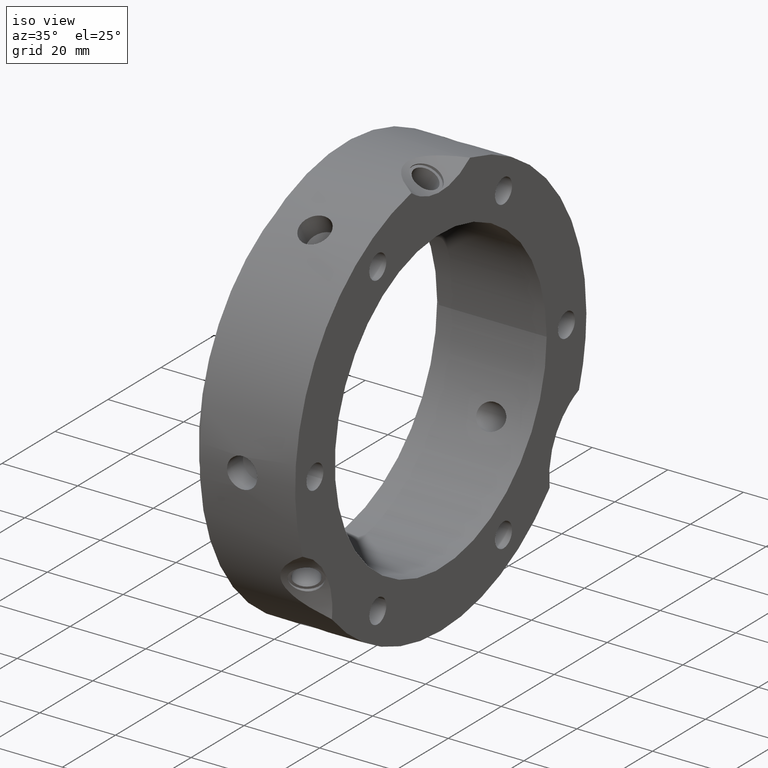
[diagram: clean part render]
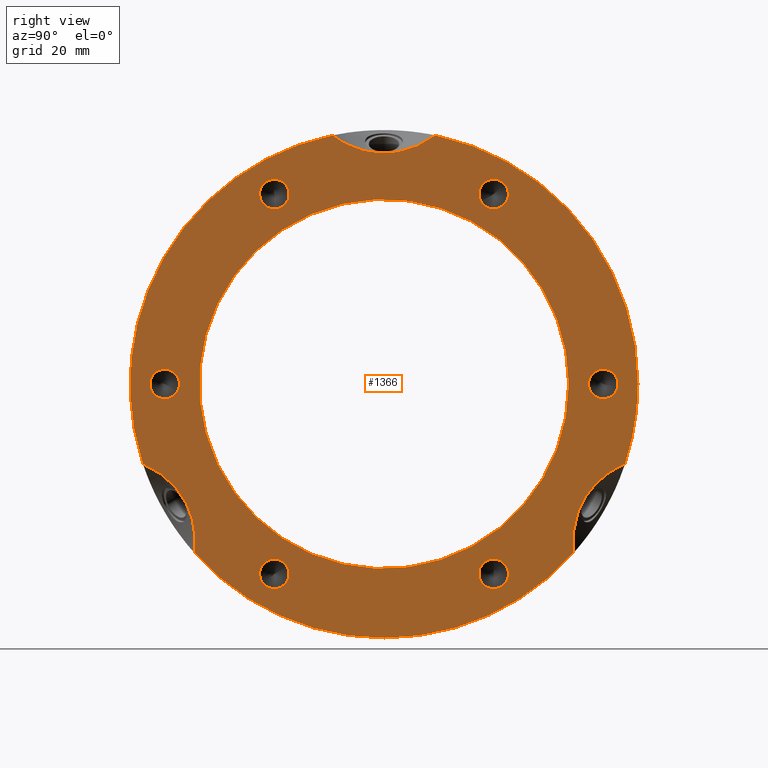
[diagram: tour spotlight — one face highlighted and labeled with its STEP entity id]
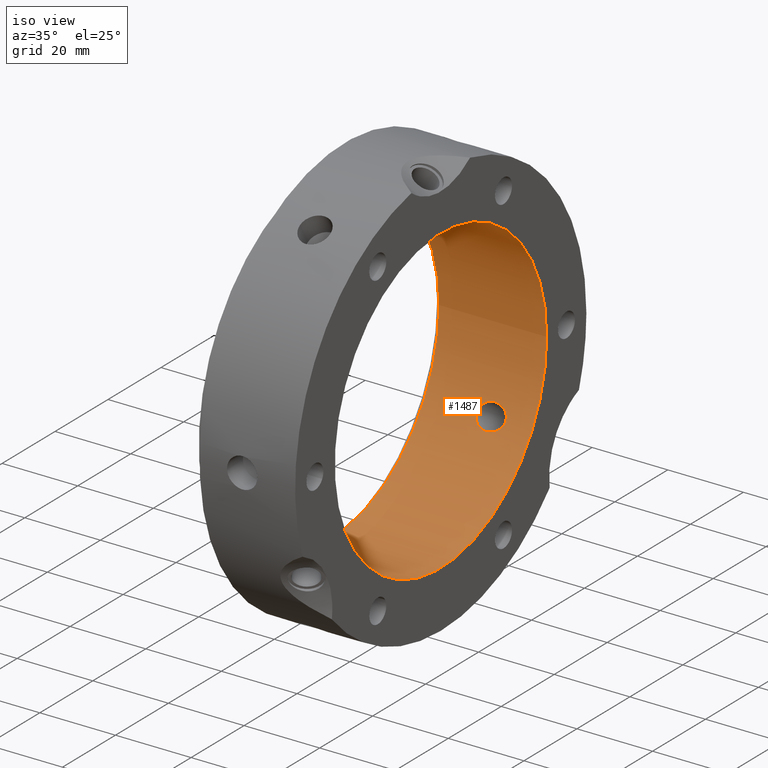
[diagram: tour spotlight — one face highlighted and labeled with its STEP entity id]
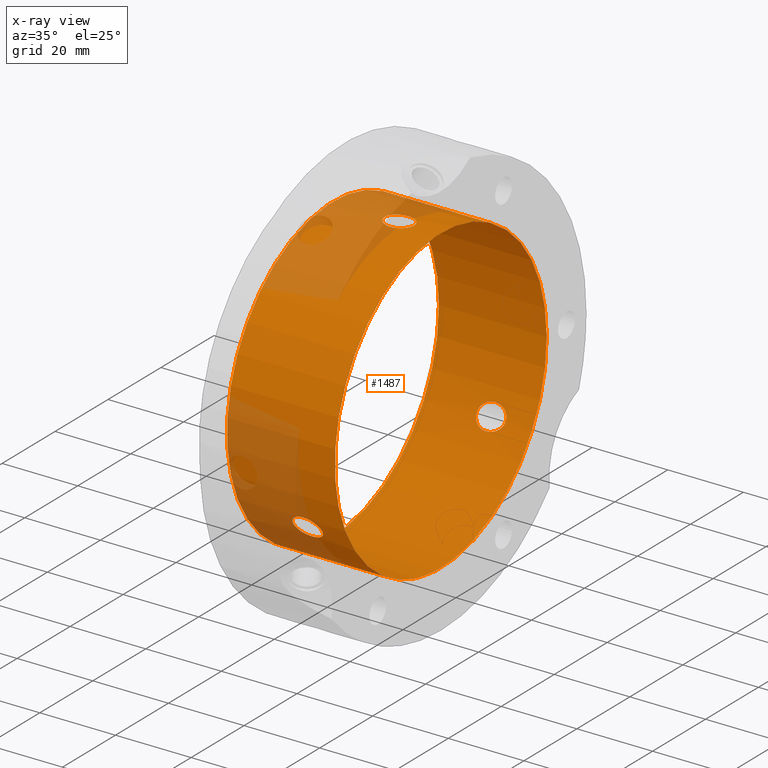
[diagram: x-ray of the same camera — body ghosted, this tour face saturated]
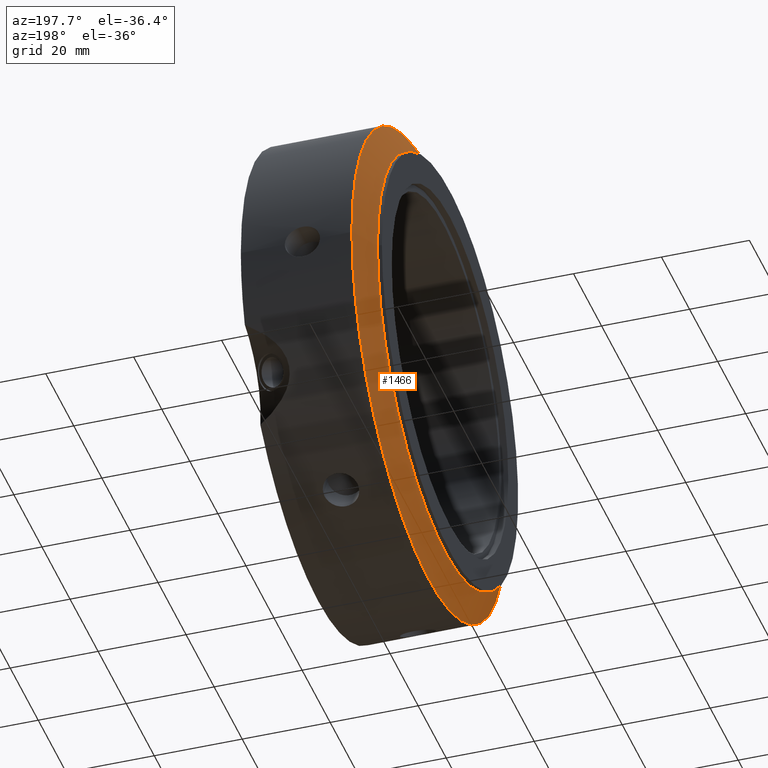
[diagram: tour spotlight — one face highlighted and labeled with its STEP entity id]
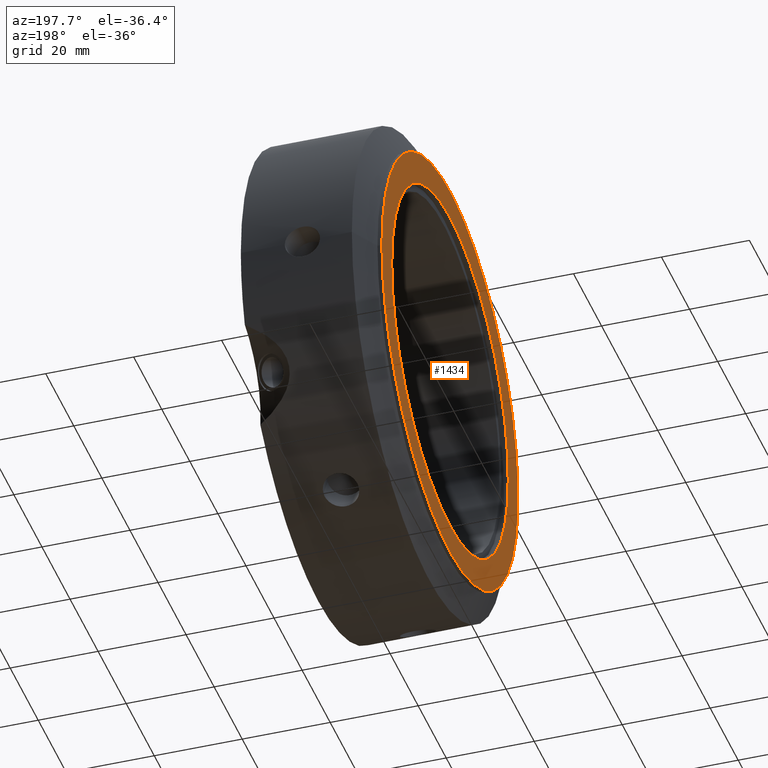
[diagram: tour spotlight — one face highlighted and labeled with its STEP entity id]
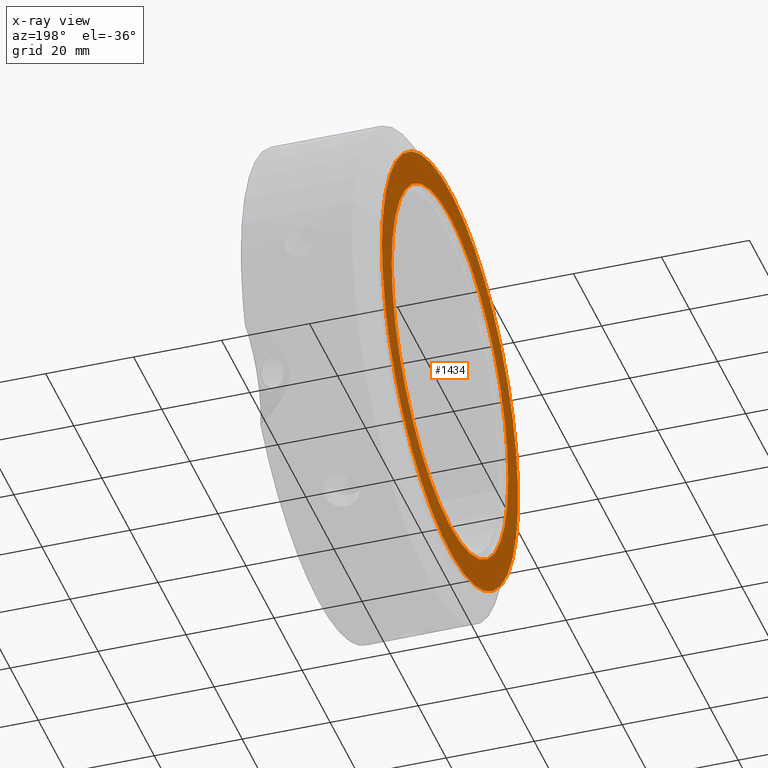
[diagram: x-ray of the same camera — body ghosted, this tour face saturated]
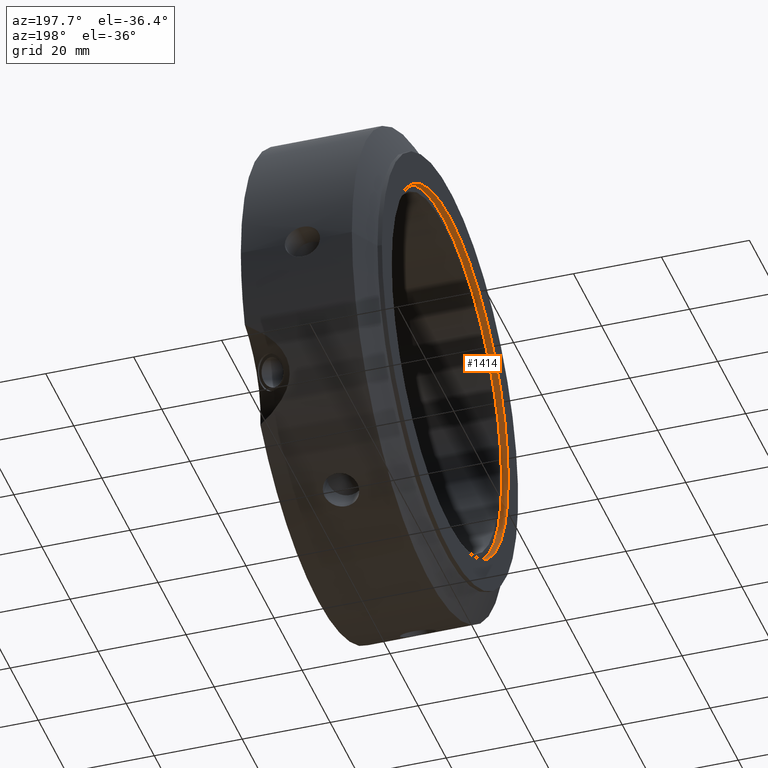
[diagram: tour spotlight — one face highlighted and labeled with its STEP entity id]
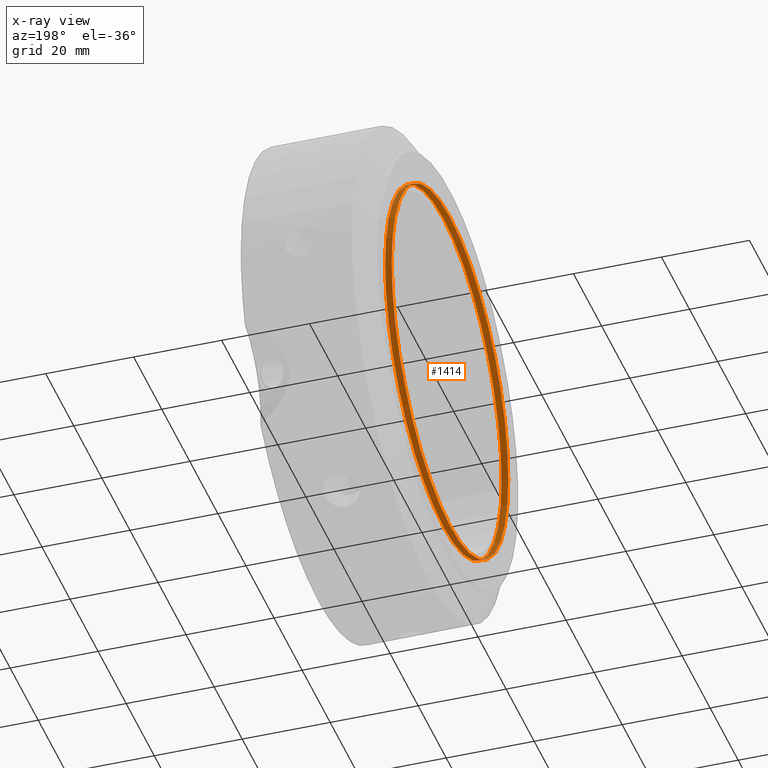
[diagram: x-ray of the same camera — body ghosted, this tour face saturated]
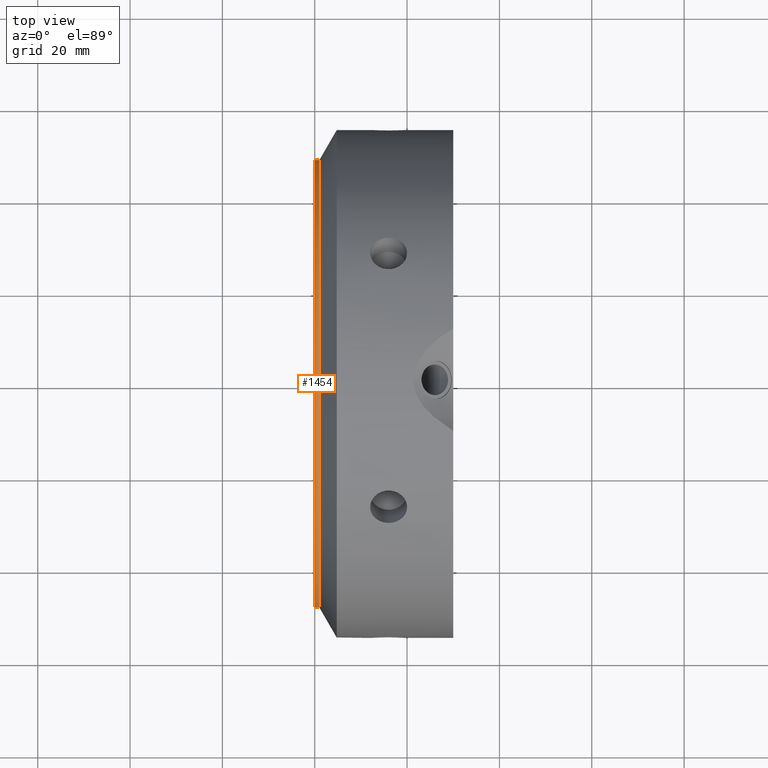
[diagram: tour spotlight — one face highlighted and labeled with its STEP entity id]
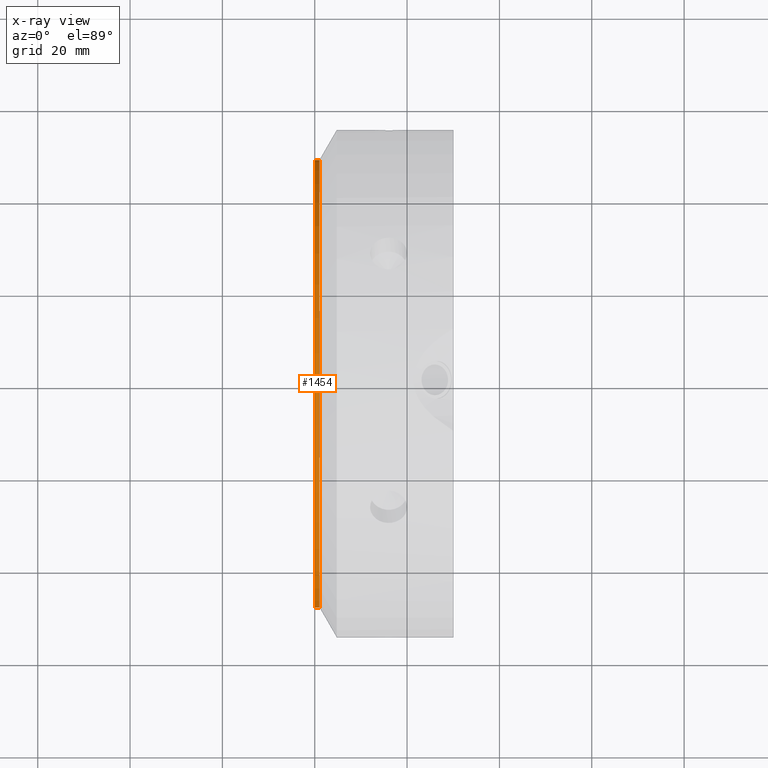
[diagram: x-ray of the same camera — body ghosted, this tour face saturated]
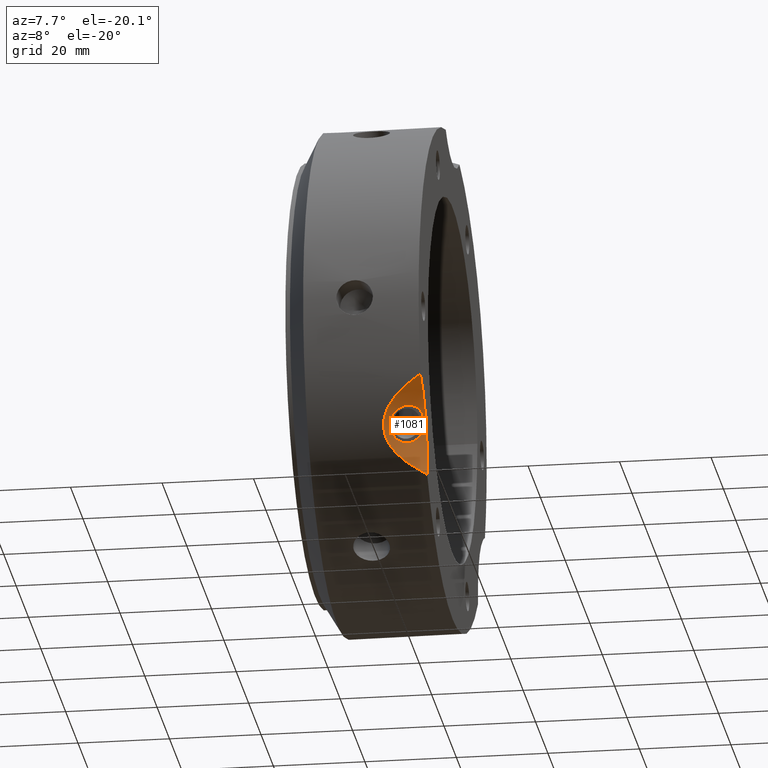
[diagram: tour spotlight — one face highlighted and labeled with its STEP entity id]
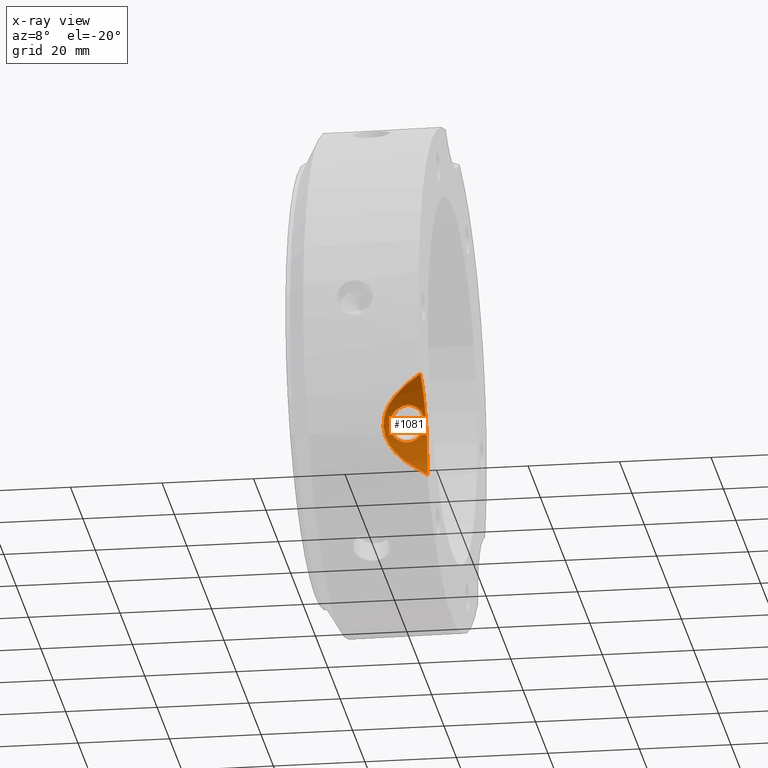
[diagram: x-ray of the same camera — body ghosted, this tour face saturated]
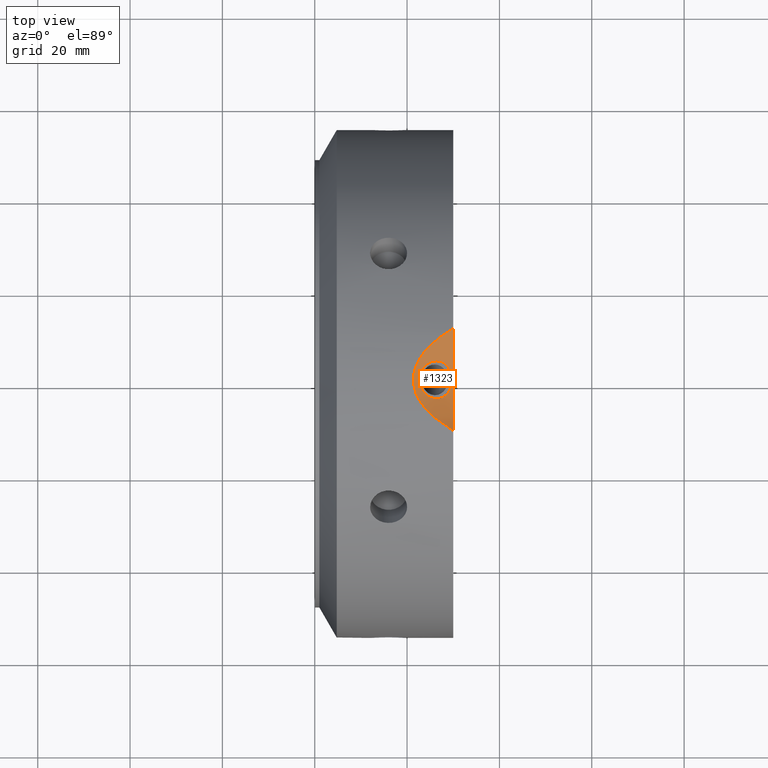
[diagram: tour spotlight — one face highlighted and labeled with its STEP entity id]
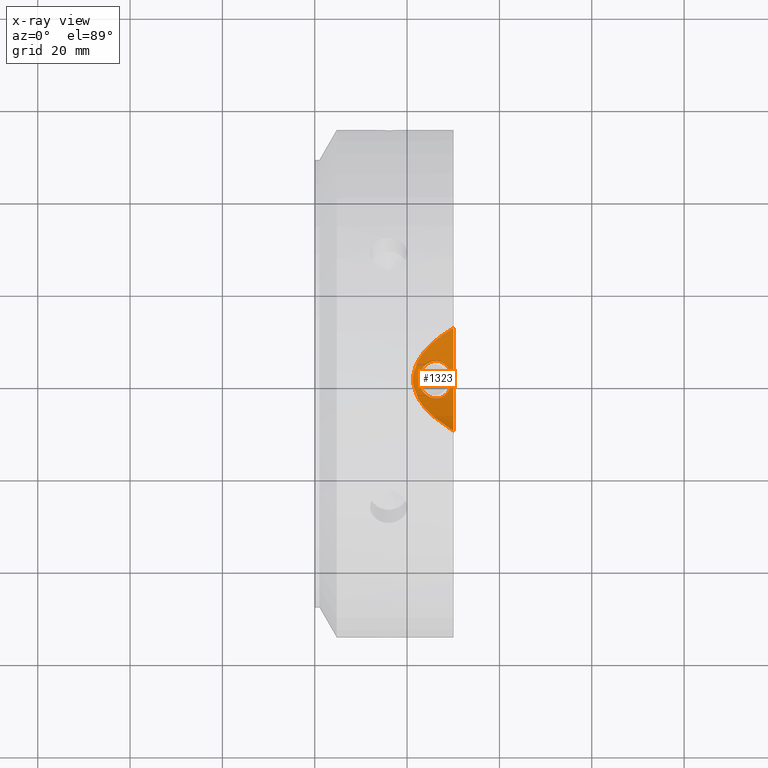
[diagram: x-ray of the same camera — body ghosted, this tour face saturated]
A machine part: a face-by-face anatomy tour. The part has 44 B-rep faces; the first image is the clean iso view, then the 8 largest visible faces are spotlighted one at a time (largest first), each with its STEP entity span.

Face 1 — right view, entity #1366. In plain terms, the highlighted planar face has unit normal (1, 0, 0).
Definition (entity closure, byte-faithful):
#165=CARTESIAN_POINT('',(29.999999999999986,20.978718707889811,39.536206679760831));
#166=VERTEX_POINT('',#165);
#167=CARTESIAN_POINT('',(29.999999999999986,23.750000000000014,41.136206679760825));
#168=DIRECTION('',(-1.0,0.0,0.0));
#169=DIRECTION('',(0.0,-0.866025403784439,-0.499999999999999));
#170=AXIS2_PLACEMENT_3D('',#167,#168,#169);
#171=CIRCLE('',#170,3.200000000000001);
#172=EDGE_CURVE('',#166,#166,#171,.T.);
#277=CARTESIAN_POINT('',(29.999999999999986,44.728718707889797,1.600000000000006));
#278=VERTEX_POINT('',#277);
#279=CARTESIAN_POINT('',(29.999999999999986,47.5,0.0));
#280=DIRECTION('',(-1.0,0.0,0.0));
#281=DIRECTION('',(0.0,-0.866025403784438,0.5));
#282=AXIS2_PLACEMENT_3D('',#279,#280,#281);
#283=CIRCLE('',#282,3.200000000000001);
#284=EDGE_CURVE('',#278,#278,#283,.T.);
#389=CARTESIAN_POINT('',(29.999999999999986,23.750000000000018,-37.936206679760829));
#390=VERTEX_POINT('',#389);
#391=CARTESIAN_POINT('',(29.999999999999986,23.750000000000018,-41.136206679760825));
#392=DIRECTION('',(-1.0,0.0,0.0));
#393=DIRECTION('',(0.0,0.0,1.0));
#394=AXIS2_PLACEMENT_3D('',#391,#392,#393);
#395=CIRCLE('',#394,3.200000000000001);
#396=EDGE_CURVE('',#390,#390,#395,.T.);
#501=CARTESIAN_POINT('',(29.999999999999986,-20.978718707889787,-39.536206679760845));
#502=VERTEX_POINT('',#501);
#503=CARTESIAN_POINT('',(29.999999999999986,-23.749999999999993,-41.136206679760846));
#504=DIRECTION('',(-1.0,0.0,0.0));
#505=DIRECTION('',(0.0,0.866025403784439,0.5));
#506=AXIS2_PLACEMENT_3D('',#503,#504,#505);
#507=CIRCLE('',#506,3.200000000000001);
#508=EDGE_CURVE('',#502,#502,#507,.T.);
#613=CARTESIAN_POINT('',(29.999999999999986,-44.728718707889797,-1.600000000000019));
#614=VERTEX_POINT('',#613);
#615=CARTESIAN_POINT('',(29.999999999999986,-47.5,-1.776357E-014));
#616=DIRECTION('',(-1.0,0.0,0.0));
#617=DIRECTION('',(0.0,0.866025403784439,-0.5));
#618=AXIS2_PLACEMENT_3D('',#615,#616,#617);
#619=CIRCLE('',#618,3.200000000000001);
#620=EDGE_CURVE('',#614,#614,#619,.T.);
#650=CARTESIAN_POINT('',(29.999999999999986,-23.750000000000021,37.936206679760822));
#651=VERTEX_POINT('',#650);
#652=CARTESIAN_POINT('',(29.999999999999986,-23.750000000000021,41.136206679760825));
#653=DIRECTION('',(-1.0,0.0,0.0));
#654=DIRECTION('',(0.0,0.0,-1.0));
#655=AXIS2_PLACEMENT_3D('',#652,#653,#654);
#656=CIRCLE('',#655,3.200000000000001);
#657=EDGE_CURVE('',#651,#651,#656,.T.);
#873=CARTESIAN_POINT('',(29.999999999999986,41.111705432493409,-36.535293572542855));
#874=VERTEX_POINT('',#873);
#875=CARTESIAN_POINT('',(29.999999999999993,52.196345084791119,-17.336134511170648));
#876=VERTEX_POINT('',#875);
#877=CARTESIAN_POINT('',(29.999999999999986,63.301270189221924,-36.547005383792552));
#878=DIRECTION('',(-1.0,0.0,0.0));
#879=DIRECTION('',(0.0,-0.866025403784438,0.5));
#880=AXIS2_PLACEMENT_3D('',#877,#878,#879);
#881=ELLIPSE('',#880,23.094010767585047,20.000000000000007);
#882=EDGE_CURVE('',#874,#876,#881,.T.);
#1044=CARTESIAN_POINT('',(29.999999999999986,-52.19634508479114,-17.336134511170609));
#1045=VERTEX_POINT('',#1044);
#1046=CARTESIAN_POINT('',(29.999999999999986,-41.111705432493444,-36.53529357254282));
#1047=VERTEX_POINT('',#1046);
#1048=CARTESIAN_POINT('',(29.999999999999986,-63.301270189221952,-36.547005383792509));
#1049=DIRECTION('',(-1.0,0.0,0.0));
#1050=DIRECTION('',(0.0,0.866025403784439,0.5));
#1051=AXIS2_PLACEMENT_3D('',#1048,#1049,#1050);
#1052=ELLIPSE('',#1051,23.094010767585047,20.000000000000007);
#1053=EDGE_CURVE('',#1045,#1047,#1052,.T.);
#1123=CARTESIAN_POINT('',(29.999999999999986,0.0,0.0));
#1124=DIRECTION('',(1.0,0.0,0.0));
#1125=DIRECTION('',(0.0,1.0,0.0));
#1126=AXIS2_PLACEMENT_3D('',#1123,#1124,#1125);
#1127=CIRCLE('',#1126,55.0);
#1128=EDGE_CURVE('',#1047,#874,#1127,.T.);
#1131=CARTESIAN_POINT('',(29.999999999999986,-11.084639652297694,53.871428083713447));
#1132=VERTEX_POINT('',#1131);
#1133=CARTESIAN_POINT('',(29.999999999999986,0.0,0.0));
#1134=DIRECTION('',(1.0,0.0,0.0));
#1135=DIRECTION('',(0.0,1.0,0.0));
#1136=AXIS2_PLACEMENT_3D('',#1133,#1134,#1135);
#1137=CIRCLE('',#1136,55.0);
#1138=EDGE_CURVE('',#1132,#1045,#1137,.T.);
#1140=CARTESIAN_POINT('',(29.999999999999986,11.084639652297694,53.871428083713447));
#1141=VERTEX_POINT('',#1140);
#1167=CARTESIAN_POINT('',(29.999999999999986,0.0,0.0));
#1168=DIRECTION('',(1.0,0.0,0.0));
#1169=DIRECTION('',(0.0,1.0,0.0));
#1170=AXIS2_PLACEMENT_3D('',#1167,#1168,#1169);
#1171=CIRCLE('',#1170,55.0);
#1172=EDGE_CURVE('',#876,#1141,#1171,.T.);
#1310=CARTESIAN_POINT('',(29.999999999999986,0.0,73.094010767585033));
#1311=DIRECTION('',(-1.0,0.0,0.0));
#1312=DIRECTION('',(0.0,0.0,-1.0));
#1313=AXIS2_PLACEMENT_3D('',#1310,#1311,#1312);
#1314=ELLIPSE('',#1313,23.094010767585047,20.000000000000004);
#1315=EDGE_CURVE('',#1141,#1132,#1314,.T.);
#1324=CARTESIAN_POINT('',(29.999999999999986,47.5,0.0));
#1325=DIRECTION('',(1.0,0.0,0.0));
#1326=DIRECTION('',(0.0,0.0,-1.0));
#1327=AXIS2_PLACEMENT_3D('',#1324,#1325,#1326);
#1328=PLANE('',#1327);
#1329=ORIENTED_EDGE('',*,*,#882,.T.);
#1330=ORIENTED_EDGE('',*,*,#1172,.T.);
#1331=ORIENTED_EDGE('',*,*,#1315,.T.);
#1332=ORIENTED_EDGE('',*,*,#1138,.T.);
#1333=ORIENTED_EDGE('',*,*,#1053,.T.);
#1334=ORIENTED_EDGE('',*,*,#1128,.T.);
#1335=EDGE_LOOP('',(#1329,#1330,#1331,#1332,#1333,#1334));
#1336=FACE_OUTER_BOUND('',#1335,.T.);
#1337=ORIENTED_EDGE('',*,*,#172,.T.);
#1338=EDGE_LOOP('',(#1337));
#1339=FACE_BOUND('',#1338,.T.);
#1340=ORIENTED_EDGE('',*,*,#284,.T.);
#1341=EDGE_LOOP('',(#1340));
#1342=FACE_BOUND('',#1341,.T.);
#1343=ORIENTED_EDGE('',*,*,#396,.T.);
#1344=EDGE_LOOP('',(#1343));
#1345=FACE_BOUND('',#1344,.T.);
#1346=ORIENTED_EDGE('',*,*,#508,.T.);
#1347=EDGE_LOOP('',(#1346));
#1348=FACE_BOUND('',#1347,.T.);
#1349=ORIENTED_EDGE('',*,*,#620,.T.);
#1350=EDGE_LOOP('',(#1349));
#1351=FACE_BOUND('',#1350,.T.);
#1352=ORIENTED_EDGE('',*,*,#657,.T.);
#1353=EDGE_LOOP('',(#1352));
#1354=FACE_BOUND('',#1353,.T.);
#1355=CARTESIAN_POINT('',(29.999999999999986,40.0,0.0));
#1356=VERTEX_POINT('',#1355);
#1357=CARTESIAN_POINT('',(29.999999999999986,0.0,0.0));
#1358=DIRECTION('',(1.0,0.0,0.0));
#1359=DIRECTION('',(0.0,1.0,0.0));
#1360=AXIS2_PLACEMENT_3D('',#1357,#1358,#1359);
#1361=CIRCLE('',#1360,40.0);
#1362=EDGE_CURVE('',#1356,#1356,#1361,.T.);
#1363=ORIENTED_EDGE('',*,*,#1362,.F.);
#1364=EDGE_LOOP('',(#1363));
#1365=FACE_BOUND('',#1364,.T.);
#1366=ADVANCED_FACE('',(#1336,#1339,#1342,#1345,#1348,#1351,#1354,#1365),#1328,.T.);

Face 2 — iso view, entity #1487. An x-ray twin of the same camera follows (body ghosted, this face saturated) — the face is partly hidden behind the body. In plain terms, the highlighted cylindrical surface (bore or boss wall) has radius 40 mm, axis along (1, 0, 0).
Definition (entity closure, byte-faithful):
#745=CARTESIAN_POINT('',(19.014157582887993,36.182986374331946,-17.052609684001691));
#746=VERTEX_POINT('',#745);
#747=CARTESIAN_POINT('',(19.014157582887993,36.182986374331946,-17.052609684001691));
#748=CARTESIAN_POINT('',(19.508219076813049,36.182986374331946,-17.052609684001691));
#749=CARTESIAN_POINT('',(20.038930494380324,36.146056527267469,-17.131703443945053));
#750=CARTESIAN_POINT('',(21.029136020147938,35.989768185182193,-17.457641635930869));
#751=CARTESIAN_POINT('',(21.48866443565252,35.870156446173326,-17.70426032139056));
#752=CARTESIAN_POINT('',(22.165679366390023,35.596614698758799,-18.24714235285964));
#753=CARTESIAN_POINT('',(22.448231932047729,35.434557554124801,-18.562010051009185));
#754=CARTESIAN_POINT('',(22.831671122661902,35.061008473536241,-19.25829098480602));
#755=CARTESIAN_POINT('',(22.931658006888497,34.84892913832946,-19.639884143045876));
#756=CARTESIAN_POINT('',(22.931658006888497,34.433103164425603,-20.36011585695416));
#757=CARTESIAN_POINT('',(22.831671122661898,34.208673463082938,-20.734578527980872));
#758=CARTESIAN_POINT('',(22.448231932047726,33.792451026538409,-21.406221988229301));
#759=CARTESIAN_POINT('',(22.165679366390016,33.600796173426772,-21.704001441421887));
#760=CARTESIAN_POINT('',(21.48866443565251,33.267417416623715,-22.212336559412993));
#761=CARTESIAN_POINT('',(21.029136020147931,33.113645239472135,-22.439232706715352));
#762=CARTESIAN_POINT('',(20.038930494380317,32.909518656191487,-22.737551477269463));
#763=CARTESIAN_POINT('',(19.508219076813049,32.859486374331944,-22.809080542956863));
#764=CARTESIAN_POINT('',(18.536085212414996,32.859486374331944,-22.809080542956863));
#765=CARTESIAN_POINT('',(18.02165185389493,32.906589782701431,-22.741756250594783));
#766=CARTESIAN_POINT('',(17.066773610044841,33.105924909924148,-22.450587171227152));
#767=CARTESIAN_POINT('',(16.626468635992694,33.258098489086741,-22.226243980758198));
#768=CARTESIAN_POINT('',(15.976196794589001,33.593042588934409,-21.716069057172319));
#769=CARTESIAN_POINT('',(15.70725324397478,33.788282679599313,-21.412878747771202));
#770=CARTESIAN_POINT('',(15.347259767394469,34.208991738703631,-20.734133859079172));
#771=CARTESIAN_POINT('',(15.256363528281607,34.434148908055462,-20.358304575855563));
#772=CARTESIAN_POINT('',(15.256363528281607,34.847883394699608,-19.641695424144469));
#773=CARTESIAN_POINT('',(15.347259767394474,35.060782516781437,-19.258788954029782));
#774=CARTESIAN_POINT('',(15.707253243974783,35.438238303525416,-18.555071776897183));
#775=CARTESIAN_POINT('',(15.976196794589004,35.603188768315597,-18.23439374384364));
#776=CARTESIAN_POINT('',(16.626468635992698,35.877541162590923,-17.689236182734909));
#777=CARTESIAN_POINT('',(17.066773610044844,35.995741275121787,-17.445278402160827));
#778=CARTESIAN_POINT('',(18.021651853894927,36.148233531039324,-17.127064578435537));
#779=CARTESIAN_POINT('',(18.536085212414996,36.182986374331946,-17.052609684001695));
#780=CARTESIAN_POINT('',(19.014157582887997,36.182986374331946,-17.052609684001695));
#781=B_SPLINE_CURVE_WITH_KNOTS('',3,(#747,#748,#749,#750,#751,#752,#753,#754,#755,#756,#757,#758,#759,#760,#761,#762,#763,#764,#765,#766,#767,#768,#769,#770,#771,#772,#773,#774,#775,#776,#777,#778,#779,#780),.UNSPECIFIED.,.T.,.U.,(4,2,2,2,2,2,2,2,2,2,2,2,2,2,2,2,4),(0.0,0.148218448177516,0.296436896355032,0.421184688526188,0.545932480697344,0.6706802728685,0.795428065039656,0.943646513217172,1.091864961394687,1.235286672536588,1.378708383678488,1.502828729671733,1.626949075664978,1.751069421658223,1.875189767651468,2.018611478793368,2.162033189935268),.UNSPECIFIED.);
#782=EDGE_CURVE('',#746,#746,#781,.T.);
#916=CARTESIAN_POINT('',(19.014157582887993,-32.859486374331965,-22.809080542956831));
#917=VERTEX_POINT('',#916);
#918=CARTESIAN_POINT('',(19.014157582887993,-32.859486374331965,-22.809080542956831));
#919=CARTESIAN_POINT('',(19.488658356557149,-32.859486374331965,-22.809080542956831));
#920=CARTESIAN_POINT('',(19.999314667833588,-32.905663669942491,-22.743029018160858));
#921=CARTESIAN_POINT('',(20.957433860708715,-33.095027118847739,-22.466580750145063));
#922=CARTESIAN_POINT('',(21.404905054005074,-33.237962302571702,-22.256040978398701));
#923=CARTESIAN_POINT('',(22.100814199478904,-33.560525300591451,-21.766256592008403));
#924=CARTESIAN_POINT('',(22.406233010182056,-33.757497595636636,-21.461555511590834));
#925=CARTESIAN_POINT('',(22.822122949928797,-34.188937557807023,-20.767367632847456));
#926=CARTESIAN_POINT('',(22.931658006888501,-34.423232151710046,-20.377212952499683));
#927=CARTESIAN_POINT('',(22.931658006888501,-34.848929138329481,-19.639884143045851));
#928=CARTESIAN_POINT('',(22.831671122661909,-35.061008473536248,-19.258290984805992));
#929=CARTESIAN_POINT('',(22.448231932047737,-35.434557554124815,-18.56201005100916));
#930=CARTESIAN_POINT('',(22.165679366390023,-35.596614698758813,-18.247142352859615));
#931=CARTESIAN_POINT('',(21.48866443565252,-35.870156446173347,-17.704260321390532));
#932=CARTESIAN_POINT('',(21.029136020147938,-35.9897681851822,-17.457641635930841));
#933=CARTESIAN_POINT('',(20.038930494380324,-36.146056527267476,-17.131703443945028));
#934=CARTESIAN_POINT('',(19.508219076813049,-36.182986374331961,-17.052609684001666));
#935=CARTESIAN_POINT('',(18.536085212414992,-36.182986374331961,-17.052609684001666));
#936=CARTESIAN_POINT('',(18.021651853894923,-36.148233531039338,-17.127064578435508));
#937=CARTESIAN_POINT('',(17.066773610044837,-35.995741275121802,-17.445278402160803));
#938=CARTESIAN_POINT('',(16.626468635992694,-35.877541162590937,-17.689236182734884));
#939=CARTESIAN_POINT('',(15.976196794589004,-35.603188768315611,-18.234393743843611));
#940=CARTESIAN_POINT('',(15.707253243974783,-35.438238303525431,-18.555071776897158));
#941=CARTESIAN_POINT('',(15.347259767394474,-35.060782516781451,-19.258788954029761));
#942=CARTESIAN_POINT('',(15.256363528281607,-34.847883394699622,-19.641695424144444));
#943=CARTESIAN_POINT('',(15.256363528281607,-34.434148908055477,-20.358304575855541));
#944=CARTESIAN_POINT('',(15.347259767394476,-34.208991738703645,-20.73413385907914));
#945=CARTESIAN_POINT('',(15.707253243974789,-33.788282679599327,-21.41287874777117));
#946=CARTESIAN_POINT('',(15.976196794589006,-33.593042588934424,-21.716069057172302));
#947=CARTESIAN_POINT('',(16.626468635992701,-33.258098489086763,-22.226243980758184));
#948=CARTESIAN_POINT('',(17.066773610044848,-33.10592490992417,-22.450587171227127));
#949=CARTESIAN_POINT('',(18.021651853894934,-32.906589782701452,-22.741756250594758));
#950=CARTESIAN_POINT('',(18.536085212414996,-32.859486374331965,-22.809080542956831));
#951=CARTESIAN_POINT('',(19.014157582887997,-32.859486374331965,-22.809080542956831));
#952=B_SPLINE_CURVE_WITH_KNOTS('',3,(#918,#919,#920,#921,#922,#923,#924,#925,#926,#927,#928,#929,#930,#931,#932,#933,#934,#935,#936,#937,#938,#939,#940,#941,#942,#943,#944,#945,#946,#947,#948,#949,#950,#951),.UNSPECIFIED.,.T.,.U.,(4,2,2,2,2,2,2,2,2,2,2,2,2,2,2,2,4),(0.0,0.142350232100747,0.284700464201494,0.415370864002,0.546041263802505,0.670789055973661,0.795536848144817,0.943755296322333,1.091973744499849,1.235395455641749,1.378817166783649,1.502937512776894,1.627057858770139,1.751178204763384,1.87529855075663,2.01872026189853,2.162141973040429),.UNSPECIFIED.);
#953=EDGE_CURVE('',#917,#917,#952,.T.);
#1182=CARTESIAN_POINT('',(19.014157582887997,-3.3235,39.861690226958515));
#1183=VERTEX_POINT('',#1182);
#1184=CARTESIAN_POINT('',(19.014157582887997,-3.3235,39.861690226958515));
#1185=CARTESIAN_POINT('',(19.508219076813052,-3.3235,39.861690226958515));
#1186=CARTESIAN_POINT('',(20.038930494380324,-3.236537871075983,39.869254921214477));
#1187=CARTESIAN_POINT('',(21.029136020147938,-2.876122945710058,39.896874342646178));
#1188=CARTESIAN_POINT('',(21.48866443565252,-2.60273902954961,39.916596880803525));
#1189=CARTESIAN_POINT('',(22.165679366390023,-1.995818525332016,39.951143794281485));
#1190=CARTESIAN_POINT('',(22.448231932047733,-1.642106527586381,39.968232039238451));
#1191=CARTESIAN_POINT('',(22.831671122661909,-0.852335010453295,39.992869512786854));
#1192=CARTESIAN_POINT('',(22.931658006888501,-0.415825973903853,40.0));
#1193=CARTESIAN_POINT('',(22.931658006888501,0.415825973903852,40.0));
#1194=CARTESIAN_POINT('',(22.831671122661909,0.852335010453294,39.992869512786854));
#1195=CARTESIAN_POINT('',(22.448231932047733,1.642106527586382,39.968232039238451));
#1196=CARTESIAN_POINT('',(22.165679366390023,1.995818525332015,39.951143794281485));
#1197=CARTESIAN_POINT('',(21.48866443565252,2.602739029549609,39.916596880803525));
#1198=CARTESIAN_POINT('',(21.029136020147938,2.876122945710059,39.896874342646186));
#1199=CARTESIAN_POINT('',(20.038930494380324,3.236537871075984,39.869254921214484));
#1200=CARTESIAN_POINT('',(19.508219076813052,3.3235,39.861690226958515));
#1201=CARTESIAN_POINT('',(18.536085212414996,3.3235,39.861690226958515));
#1202=CARTESIAN_POINT('',(18.021651853894934,3.24164374833789,39.868820829030284));
#1203=CARTESIAN_POINT('',(17.066773610044851,2.889816365197636,39.895865573387944));
#1204=CARTESIAN_POINT('',(16.626468635992701,2.61944267350418,39.915480163493079));
#1205=CARTESIAN_POINT('',(15.976196794589011,2.010146179381192,39.950462801015931));
#1206=CARTESIAN_POINT('',(15.707253243974789,1.649955623926109,39.967950524668353));
#1207=CARTESIAN_POINT('',(15.347259767394476,0.851790778077809,39.992922813108926));
#1208=CARTESIAN_POINT('',(15.256363528281611,0.413734486644152,40.0));
#1209=CARTESIAN_POINT('',(15.256363528281611,-0.41373448664415,40.0));
#1210=CARTESIAN_POINT('',(15.347259767394474,-0.851790778077808,39.992922813108926));
#1211=CARTESIAN_POINT('',(15.707253243974787,-1.649955623926107,39.967950524668353));
#1212=CARTESIAN_POINT('',(15.976196794589011,-2.010146179381191,39.950462801015931));
#1213=CARTESIAN_POINT('',(16.626468635992705,-2.61944267350418,39.915480163493079));
#1214=CARTESIAN_POINT('',(17.066773610044851,-2.889816365197635,39.895865573387944));
#1215=CARTESIAN_POINT('',(18.021651853894934,-3.24164374833789,39.868820829030284));
#1216=CARTESIAN_POINT('',(18.536085212414996,-3.3235,39.861690226958515));
#1217=CARTESIAN_POINT('',(19.014157582887997,-3.3235,39.861690226958515));
#1218=B_SPLINE_CURVE_WITH_KNOTS('',3,(#1184,#1185,#1186,#1187,#1188,#1189,#1190,#1191,#1192,#1193,#1194,#1195,#1196,#1197,#1198,#1199,#1200,#1201,#1202,#1203,#1204,#1205,#1206,#1207,#1208,#1209,#1210,#1211,#1212,#1213,#1214,#1215,#1216,#1217),.UNSPECIFIED.,.T.,.U.,(4,2,2,2,2,2,2,2,2,2,2,2,2,2,2,2,4),(0.0,0.148218448177516,0.296436896355032,0.421184688526188,0.545932480697344,0.670680272868499,0.795428065039655,0.943646513217171,1.091864961394687,1.235286672536587,1.378708383678487,1.502828729671732,1.626949075664977,1.751069421658222,1.875189767651468,2.018611478793368,2.162033189935268),.UNSPECIFIED.);
#1219=EDGE_CURVE('',#1183,#1183,#1218,.T.);
#1355=CARTESIAN_POINT('',(29.999999999999986,40.0,0.0));
#1356=VERTEX_POINT('',#1355);
#1357=CARTESIAN_POINT('',(29.999999999999986,0.0,0.0));
#1358=DIRECTION('',(1.0,0.0,0.0));
#1359=DIRECTION('',(0.0,1.0,0.0));
#1360=AXIS2_PLACEMENT_3D('',#1357,#1358,#1359);
#1361=CIRCLE('',#1360,40.0);
#1362=EDGE_CURVE('',#1356,#1356,#1361,.T.);
#1383=CARTESIAN_POINT('',(1.499999999999988,40.0,0.0));
#1384=VERTEX_POINT('',#1383);
#1385=CARTESIAN_POINT('',(1.499999999999988,0.0,0.0));
#1386=DIRECTION('',(1.0,0.0,0.0));
#1387=DIRECTION('',(0.0,1.0,0.0));
#1388=AXIS2_PLACEMENT_3D('',#1385,#1386,#1387);
#1389=CIRCLE('',#1388,40.0);
#1390=EDGE_CURVE('',#1384,#1384,#1389,.T.);
#1467=CARTESIAN_POINT('',(15.749999999999989,0.0,0.0));
#1468=DIRECTION('',(1.0,0.0,0.0));
#1469=DIRECTION('',(0.0,1.0,0.0));
#1470=AXIS2_PLACEMENT_3D('',#1467,#1468,#1469);
#1471=CYLINDRICAL_SURFACE('',#1470,40.0);
#1472=ORIENTED_EDGE('',*,*,#1390,.F.);
#1473=EDGE_LOOP('',(#1472));
#1474=FACE_OUTER_BOUND('',#1473,.T.);
#1475=ORIENTED_EDGE('',*,*,#782,.T.);
#1476=EDGE_LOOP('',(#1475));
#1477=FACE_BOUND('',#1476,.T.);
#1478=ORIENTED_EDGE('',*,*,#953,.T.);
#1479=EDGE_LOOP('',(#1478));
#1480=FACE_BOUND('',#1479,.T.);
#1481=ORIENTED_EDGE('',*,*,#1219,.T.);
#1482=EDGE_LOOP('',(#1481));
#1483=FACE_BOUND('',#1482,.T.);
#1484=ORIENTED_EDGE('',*,*,#1362,.T.);
#1485=EDGE_LOOP('',(#1484));
#1486=FACE_BOUND('',#1485,.T.);
#1487=ADVANCED_FACE('',(#1474,#1477,#1480,#1483,#1486),#1471,.F.);

Face 3 — auxiliary view, entity #1466. In plain terms, the highlighted conical surface has half-angle 60 deg.
Definition (entity closure, byte-faithful):
#1087=CARTESIAN_POINT('',(4.752776749732544,55.0,0.0));
#1088=VERTEX_POINT('',#1087);
#1089=CARTESIAN_POINT('',(4.752776749732544,0.0,0.0));
#1090=DIRECTION('',(1.0,0.0,0.0));
#1091=DIRECTION('',(0.0,1.0,0.0));
#1092=AXIS2_PLACEMENT_3D('',#1089,#1090,#1091);
#1093=CIRCLE('',#1092,55.0);
#1094=EDGE_CURVE('',#1088,#1088,#1093,.T.);
#1440=CARTESIAN_POINT('',(0.999999999999987,48.500000000000007,0.0));
#1441=VERTEX_POINT('',#1440);
#1442=CARTESIAN_POINT('',(0.999999999999987,0.0,0.0));
#1443=DIRECTION('',(1.0,0.0,0.0));
#1444=DIRECTION('',(0.0,1.0,0.0));
#1445=AXIS2_PLACEMENT_3D('',#1442,#1443,#1444);
#1446=CIRCLE('',#1445,48.500000000000007);
#1447=EDGE_CURVE('',#1441,#1441,#1446,.T.);
#1455=CARTESIAN_POINT('',(2.876388374866265,0.0,0.0));
#1456=DIRECTION('',(1.0,0.0,0.0));
#1457=DIRECTION('',(0.0,1.0,0.0));
#1458=AXIS2_PLACEMENT_3D('',#1455,#1456,#1457);
#1459=CONICAL_SURFACE('',#1458,51.750000000000007,60.000000000000043);
#1460=ORIENTED_EDGE('',*,*,#1094,.F.);
#1461=EDGE_LOOP('',(#1460));
#1462=FACE_OUTER_BOUND('',#1461,.T.);
#1463=ORIENTED_EDGE('',*,*,#1447,.T.);
#1464=EDGE_LOOP('',(#1463));
#1465=FACE_BOUND('',#1464,.T.);
#1466=ADVANCED_FACE('',(#1462,#1465),#1459,.T.);

Face 4 — auxiliary view, entity #1434. An x-ray twin of the same camera follows (body ghosted, this face saturated) — the face is partly hidden behind the body. In plain terms, the highlighted planar face has unit normal (-1, 0, 0).
Definition (entity closure, byte-faithful):
#1400=CARTESIAN_POINT('',(-1.193490E-014,41.5,0.0));
#1401=VERTEX_POINT('',#1400);
#1402=CARTESIAN_POINT('',(-1.193490E-014,0.0,0.0));
#1403=DIRECTION('',(1.0,0.0,0.0));
#1404=DIRECTION('',(0.0,1.0,0.0));
#1405=AXIS2_PLACEMENT_3D('',#1402,#1403,#1404);
#1406=CIRCLE('',#1405,41.5);
#1407=EDGE_CURVE('',#1401,#1401,#1406,.T.);
#1415=CARTESIAN_POINT('',(-1.262879E-014,45.0,0.0));
#1416=DIRECTION('',(-1.0,0.0,0.0));
#1417=DIRECTION('',(0.0,0.0,1.0));
#1418=AXIS2_PLACEMENT_3D('',#1415,#1416,#1417);
#1419=PLANE('',#1418);
#1420=CARTESIAN_POINT('',(-1.332268E-014,48.500000000000007,0.0));
#1421=VERTEX_POINT('',#1420);
#1422=CARTESIAN_POINT('',(-1.332268E-014,0.0,0.0));
#1423=DIRECTION('',(1.0,0.0,0.0));
#1424=DIRECTION('',(0.0,1.0,0.0));
#1425=AXIS2_PLACEMENT_3D('',#1422,#1423,#1424);
#1426=CIRCLE('',#1425,48.500000000000007);
#1427=EDGE_CURVE('',#1421,#1421,#1426,.T.);
#1428=ORIENTED_EDGE('',*,*,#1427,.F.);
#1429=EDGE_LOOP('',(#1428));
#1430=FACE_OUTER_BOUND('',#1429,.T.);
#1431=ORIENTED_EDGE('',*,*,#1407,.T.);
#1432=EDGE_LOOP('',(#1431));
#1433=FACE_BOUND('',#1432,.T.);
#1434=ADVANCED_FACE('',(#1430,#1433),#1419,.T.);

Face 5 — auxiliary view, entity #1414. An x-ray twin of the same camera follows (body ghosted, this face saturated) — the face is partly hidden behind the body. In plain terms, the highlighted cylindrical surface (bore or boss wall) has radius 41.5 mm, axis along (1, 0, 0).
Definition (entity closure, byte-faithful):
#1372=CARTESIAN_POINT('',(1.499999999999988,41.5,0.0));
#1373=VERTEX_POINT('',#1372);
#1374=CARTESIAN_POINT('',(1.499999999999988,0.0,0.0));
#1375=DIRECTION('',(1.0,0.0,0.0));
#1376=DIRECTION('',(0.0,1.0,0.0));
#1377=AXIS2_PLACEMENT_3D('',#1374,#1375,#1376);
#1378=CIRCLE('',#1377,41.5);
#1379=EDGE_CURVE('',#1373,#1373,#1378,.T.);
#1395=CARTESIAN_POINT('',(0.749999999999988,0.0,0.0));
#1396=DIRECTION('',(1.0,0.0,0.0));
#1397=DIRECTION('',(0.0,1.0,0.0));
#1398=AXIS2_PLACEMENT_3D('',#1395,#1396,#1397);
#1399=CYLINDRICAL_SURFACE('',#1398,41.5);
#1400=CARTESIAN_POINT('',(-1.193490E-014,41.5,0.0));
#1401=VERTEX_POINT('',#1400);
#1402=CARTESIAN_POINT('',(-1.193490E-014,0.0,0.0));
#1403=DIRECTION('',(1.0,0.0,0.0));
#1404=DIRECTION('',(0.0,1.0,0.0));
#1405=AXIS2_PLACEMENT_3D('',#1402,#1403,#1404);
#1406=CIRCLE('',#1405,41.5);
#1407=EDGE_CURVE('',#1401,#1401,#1406,.T.);
#1408=ORIENTED_EDGE('',*,*,#1407,.F.);
#1409=EDGE_LOOP('',(#1408));
#1410=FACE_OUTER_BOUND('',#1409,.T.);
#1411=ORIENTED_EDGE('',*,*,#1379,.T.);
#1412=EDGE_LOOP('',(#1411));
#1413=FACE_BOUND('',#1412,.T.);
#1414=ADVANCED_FACE('',(#1410,#1413),#1399,.F.);

Face 6 — top view, entity #1454. An x-ray twin of the same camera follows (body ghosted, this face saturated) — the face is partly hidden behind the body. In plain terms, the highlighted cylindrical surface (bore or boss wall) has radius 48.5 mm, axis along (1, 0, 0).
Definition (entity closure, byte-faithful):
#1420=CARTESIAN_POINT('',(-1.332268E-014,48.500000000000007,0.0));
#1421=VERTEX_POINT('',#1420);
#1422=CARTESIAN_POINT('',(-1.332268E-014,0.0,0.0));
#1423=DIRECTION('',(1.0,0.0,0.0));
#1424=DIRECTION('',(0.0,1.0,0.0));
#1425=AXIS2_PLACEMENT_3D('',#1422,#1423,#1424);
#1426=CIRCLE('',#1425,48.500000000000007);
#1427=EDGE_CURVE('',#1421,#1421,#1426,.T.);
#1435=CARTESIAN_POINT('',(0.499999999999987,0.0,0.0));
#1436=DIRECTION('',(1.0,0.0,0.0));
#1437=DIRECTION('',(0.0,1.0,0.0));
#1438=AXIS2_PLACEMENT_3D('',#1435,#1436,#1437);
#1439=CYLINDRICAL_SURFACE('',#1438,48.500000000000007);
#1440=CARTESIAN_POINT('',(0.999999999999987,48.500000000000007,0.0));
#1441=VERTEX_POINT('',#1440);
#1442=CARTESIAN_POINT('',(0.999999999999987,0.0,0.0));
#1443=DIRECTION('',(1.0,0.0,0.0));
#1444=DIRECTION('',(0.0,1.0,0.0));
#1445=AXIS2_PLACEMENT_3D('',#1442,#1443,#1444);
#1446=CIRCLE('',#1445,48.500000000000007);
#1447=EDGE_CURVE('',#1441,#1441,#1446,.T.);
#1448=ORIENTED_EDGE('',*,*,#1447,.F.);
#1449=EDGE_LOOP('',(#1448));
#1450=FACE_OUTER_BOUND('',#1449,.T.);
#1451=ORIENTED_EDGE('',*,*,#1427,.T.);
#1452=EDGE_LOOP('',(#1451));
#1453=FACE_BOUND('',#1452,.T.);
#1454=ADVANCED_FACE('',(#1450,#1453),#1439,.T.);

Face 7 — auxiliary view, entity #1081. An x-ray twin of the same camera follows (body ghosted, this face saturated) — the face is partly hidden behind the body. In plain terms, the highlighted cylindrical surface (partial cylindrical patch) has radius 20 mm, axis along (-0.866, -0.433, -0.25).
Definition (entity closure, byte-faithful):
#985=CARTESIAN_POINT('',(26.363015363542562,-43.494523045313791,-29.845846795841219));
#986=VERTEX_POINT('',#985);
#987=CARTESIAN_POINT('',(26.363015363542562,-43.494523045313798,-29.845846795841222));
#988=CARTESIAN_POINT('',(26.8102302530415,-43.270915600564322,-29.716746977422311));
#989=CARTESIAN_POINT('',(27.275080743859551,-43.067687950859877,-29.479898391944047));
#990=CARTESIAN_POINT('',(28.109119982337887,-42.779326641952544,-28.829747388914061));
#991=CARTESIAN_POINT('',(28.479042583622693,-42.695028892754664,-28.417016237916219));
#992=CARTESIAN_POINT('',(29.054904298417767,-42.663873413880552,-27.560266940955145));
#993=CARTESIAN_POINT('',(29.299739556835171,-42.715031390241606,-27.05857529758811));
#994=CARTESIAN_POINT('',(29.622718769421756,-42.978846888967048,-26.044948561600965));
#995=CARTESIAN_POINT('',(29.701339250127184,-43.192416928543921,-25.533403106734703));
#996=CARTESIAN_POINT('',(29.701339250127184,-43.708784199772737,-24.639028757600705));
#997=CARTESIAN_POINT('',(29.622718769421756,-44.045010539088949,-24.198298950406752));
#998=CARTESIAN_POINT('',(29.299739556835171,-44.79092929304619,-23.463014658604877));
#999=CARTESIAN_POINT('',(29.054904298417767,-45.199828012887892,-23.167864729786494));
#1000=CARTESIAN_POINT('',(28.479042583622693,-45.957372408167686,-22.766471517478003));
#1001=CARTESIAN_POINT('',(28.109119982337887,-46.356956944463946,-22.63310993426629));
#1002=CARTESIAN_POINT('',(27.275080743859551,-47.064184883837527,-22.557762651733583));
#1003=CARTESIAN_POINT('',(26.810230253041503,-47.370915600564331,-22.61533866638991));
#1004=CARTESIAN_POINT('',(25.915800474043618,-47.818130490063268,-22.873538303227726));
#1005=CARTESIAN_POINT('',(25.428396045418964,-47.987527233057811,-23.090854605610097));
#1006=CARTESIAN_POINT('',(24.51358180203934,-48.154726034613219,-23.671052402404761));
#1007=CARTESIAN_POINT('',(24.086679358649882,-48.153554020654099,-24.034437562636338));
#1008=CARTESIAN_POINT('',(23.404398564175388,-48.025080880009085,-24.799025233147674));
#1009=CARTESIAN_POINT('',(23.103110563226355,-47.889243789850596,-25.251827367369025));
#1010=CARTESIAN_POINT('',(22.700569329317169,-47.506085259141237,-26.196551371714357));
#1011=CARTESIAN_POINT('',(22.59993093909479,-47.259488355288937,-26.68902875760071));
#1012=CARTESIAN_POINT('',(22.59993093909479,-46.743121084060128,-27.583403106734707));
#1013=CARTESIAN_POINT('',(22.700569329317169,-46.439921609019365,-28.043200982908566));
#1014=CARTESIAN_POINT('',(23.103110563226355,-45.813345887046026,-28.847388006352258));
#1015=CARTESIAN_POINT('',(23.404398564175388,-45.489126281001752,-29.191427444316325));
#1016=CARTESIAN_POINT('',(24.086679358649882,-44.891210505241077,-29.684982283074554));
#1017=CARTESIAN_POINT('',(24.513581802039344,-44.577095732101803,-29.867689857052525));
#1018=CARTESIAN_POINT('',(25.428396045418964,-43.991030300080155,-30.012990345820558));
#1019=CARTESIAN_POINT('',(25.915800474043618,-43.718130490063274,-29.974946614260137));
#1020=CARTESIAN_POINT('',(26.363015363542562,-43.494523045313798,-29.845846795841222));
#1021=B_SPLINE_CURVE_WITH_KNOTS('',3,(#987,#988,#989,#990,#991,#992,#993,#994,#995,#996,#997,#998,#999,#1000,#1001,#1002,#1003,#1004,#1005,#1006,#1007,#1008,#1009,#1010,#1011,#1012,#1013,#1014,#1015,#1016,#1017,#1018,#1019,#1020),.UNSPECIFIED.,.T.,.U.,(4,2,2,2,2,2,2,2,2,2,2,2,2,2,2,2,4),(0.0,0.154919782102695,0.30983956420539,0.464749745574033,0.619659926942675,0.774570108311318,0.929480289679961,1.084400071782656,1.239319853885351,1.394239635988046,1.549159418090741,1.704069599459384,1.858979780828026,2.013889962196669,2.168800143565312,2.323719925668007,2.478639707770702),.UNSPECIFIED.);
#1022=EDGE_CURVE('',#986,#986,#1021,.T.);
#1039=CARTESIAN_POINT('',(33.321507575751184,-61.640516401346346,-35.588168737304841));
#1040=DIRECTION('',(-0.866025403784438,-0.43301270189222,-0.25));
#1041=DIRECTION('',(-0.500000000000001,0.75,0.433012701892219));
#1042=AXIS2_PLACEMENT_3D('',#1039,#1040,#1041);
#1043=CYLINDRICAL_SURFACE('',#1042,20.000000000000007);
#1044=CARTESIAN_POINT('',(29.999999999999986,-52.19634508479114,-17.336134511170609));
#1045=VERTEX_POINT('',#1044);
#1046=CARTESIAN_POINT('',(29.999999999999986,-41.111705432493444,-36.53529357254282));
#1047=VERTEX_POINT('',#1046);
#1048=CARTESIAN_POINT('',(29.999999999999986,-63.301270189221952,-36.547005383792509));
#1049=DIRECTION('',(-1.0,0.0,0.0));
#1050=DIRECTION('',(0.0,0.866025403784439,0.5));
#1051=AXIS2_PLACEMENT_3D('',#1048,#1049,#1050);
#1052=ELLIPSE('',#1051,23.094010767585047,20.000000000000007);
#1053=EDGE_CURVE('',#1045,#1047,#1052,.T.);
#1054=ORIENTED_EDGE('',*,*,#1053,.F.);
#1055=CARTESIAN_POINT('',(29.999999999999982,-41.111705432493444,-36.53529357254282));
#1056=CARTESIAN_POINT('',(29.00235846310246,-41.512508653632025,-36.084285729096145));
#1057=CARTESIAN_POINT('',(28.046772252161993,-41.930838059605222,-35.598843194104049));
#1058=CARTESIAN_POINT('',(25.686448396470301,-43.080641768413045,-34.209691486458738));
#1059=CARTESIAN_POINT('',(24.208355563743176,-43.929737571784777,-33.130557194272598));
#1060=CARTESIAN_POINT('',(22.574225337142508,-45.291078156154526,-31.214294453789847));
#1061=CARTESIAN_POINT('',(22.125603222101368,-45.759723836494537,-30.525416772690516));
#1062=CARTESIAN_POINT('',(21.508088513901065,-46.700170616414013,-29.066259808498312));
#1063=CARTESIAN_POINT('',(21.339745962155607,-47.171971920287717,-28.29574794084926));
#1064=CARTESIAN_POINT('',(21.339745962155607,-48.090822496000541,-26.704252059150718));
#1065=CARTESIAN_POINT('',(21.508088513901065,-48.522204695365176,-25.91040421063294));
#1066=CARTESIAN_POINT('',(22.125603222101361,-49.315648304504862,-24.366374926219301));
#1067=CARTESIAN_POINT('',(22.574225337142497,-49.677911036266984,-23.616077021121342));
#1068=CARTESIAN_POINT('',(24.208355563743162,-50.656772957665758,-21.47899012161302));
#1069=CARTESIAN_POINT('',(25.686448396470283,-51.166782767108018,-20.204084439553284));
#1070=CARTESIAN_POINT('',(28.04677225216199,-51.794921581235499,-18.513749364537482));
#1071=CARTESIAN_POINT('',(29.00235846310245,-52.00616244562957,-17.908744204318584));
#1072=CARTESIAN_POINT('',(29.999999999999982,-52.196345084791133,-17.336134511170602));
#1073=B_SPLINE_CURVE_WITH_KNOTS('',3,(#1055,#1056,#1057,#1058,#1059,#1060,#1061,#1062,#1063,#1064,#1065,#1066,#1067,#1068,#1069,#1070,#1071,#1072),.UNSPECIFIED.,.F.,.U.,(4,2,2,2,2,2,2,2,4),(2.263948461845117,2.603740117618769,3.155050463046468,3.430705635760318,3.706360808474168,3.982015981188017,4.257671153901866,4.808981499329564,5.148773155103218),.UNSPECIFIED.);
#1074=EDGE_CURVE('',#1047,#1045,#1073,.T.);
#1075=ORIENTED_EDGE('',*,*,#1074,.F.);
#1076=EDGE_LOOP('',(#1054,#1075));
#1077=FACE_OUTER_BOUND('',#1076,.T.);
#1078=ORIENTED_EDGE('',*,*,#1022,.F.);
#1079=EDGE_LOOP('',(#1078));
#1080=FACE_BOUND('',#1079,.T.);
#1081=ADVANCED_FACE('',(#1077,#1080),#1043,.F.);

Face 8 — top view, entity #1323. An x-ray twin of the same camera follows (body ghosted, this face saturated) — the face is partly hidden behind the body. In plain terms, the highlighted cylindrical surface (partial cylindrical patch) has radius 20 mm, axis along (-0.866, 0, 0.5).
Definition (entity closure, byte-faithful):
#1131=CARTESIAN_POINT('',(29.999999999999986,-11.084639652297694,53.871428083713447));
#1132=VERTEX_POINT('',#1131);
#1140=CARTESIAN_POINT('',(29.999999999999986,11.084639652297694,53.871428083713447));
#1141=VERTEX_POINT('',#1140);
#1142=CARTESIAN_POINT('',(29.999999999999986,-11.084639652297689,53.871428083713447));
#1143=CARTESIAN_POINT('',(29.71071539346962,-10.913272376839613,53.906688788027743));
#1144=CARTESIAN_POINT('',(29.424903568010414,-10.738565016344008,53.941785034208394));
#1145=CARTESIAN_POINT('',(27.739253698508769,-9.673315221481873,54.150198950524604));
#1146=CARTESIAN_POINT('',(26.431241032822264,-8.702965265539945,54.317983959980566));
#1147=CARTESIAN_POINT('',(24.247185969711257,-6.656526844495048,54.604457563414798));
#1148=CARTESIAN_POINT('',(23.226171017422416,-5.481926031469514,54.741807497349804));
#1149=CARTESIAN_POINT('',(22.13097360686195,-3.522066476679503,54.891022204814647));
#1150=CARTESIAN_POINT('',(21.837357376153928,-2.835224348713799,54.93137486398291));
#1151=CARTESIAN_POINT('',(21.441504257680396,-1.429951105739836,54.985904388838506));
#1152=CARTESIAN_POINT('',(21.339745962155593,-0.711382067851648,55.0));
#1153=CARTESIAN_POINT('',(21.339745962155593,0.711382067851648,55.0));
#1154=CARTESIAN_POINT('',(21.441504257680396,1.429951105739836,54.985904388838506));
#1155=CARTESIAN_POINT('',(21.837357376153928,2.835224348713799,54.93137486398291));
#1156=CARTESIAN_POINT('',(22.13097360686195,3.522066476679503,54.891022204814647));
#1157=CARTESIAN_POINT('',(23.226171017422416,5.481926031469514,54.741807497349804));
#1158=CARTESIAN_POINT('',(24.247185969711257,6.656526844495048,54.604457563414798));
#1159=CARTESIAN_POINT('',(26.431241032822264,8.702965265539941,54.317983959980566));
#1160=CARTESIAN_POINT('',(27.739253698508769,9.673315221481872,54.150198950524604));
#1161=CARTESIAN_POINT('',(29.424903568010414,10.738565016344008,53.941785034208387));
#1162=CARTESIAN_POINT('',(29.71071539346962,10.913272376839611,53.906688788027736));
#1163=CARTESIAN_POINT('',(29.999999999999986,11.084639652297687,53.87142808371344));
#1164=B_SPLINE_CURVE_WITH_KNOTS('',3,(#1142,#1143,#1144,#1145,#1146,#1147,#1148,#1149,#1150,#1151,#1152,#1153,#1154,#1155,#1156,#1157,#1158,#1159,#1160,#1161,#1162,#1163),.UNSPECIFIED.,.F.,.U.,(4,2,2,2,2,2,2,2,2,2,4),(1.330092702985719,1.42551667970903,1.900688906278707,2.327518146989696,2.54093276734519,2.754347387700684,2.967762008056178,3.181176628411673,3.608005869122661,4.083178095692338,4.178602072415649),.UNSPECIFIED.);
#1165=EDGE_CURVE('',#1132,#1141,#1164,.T.);
#1240=CARTESIAN_POINT('',(26.363015363542566,-4.1,52.590285280650058));
#1241=VERTEX_POINT('',#1240);
#1242=CARTESIAN_POINT('',(26.363015363542566,-4.1,52.590285280650058));
#1243=CARTESIAN_POINT('',(25.915800474043621,-4.1,52.84848491748788));
#1244=CARTESIAN_POINT('',(25.428396045418964,-3.996496932977641,53.103844951430681));
#1245=CARTESIAN_POINT('',(24.51358180203934,-3.577630302511406,53.538742259457308));
#1246=CARTESIAN_POINT('',(24.086679358649882,-3.262343515413023,53.71941984571091));
#1247=CARTESIAN_POINT('',(23.404398564175388,-2.535954599007328,53.99045267746402));
#1248=CARTESIAN_POINT('',(23.103110563226355,-2.075897902804589,54.099215373721293));
#1249=CARTESIAN_POINT('',(22.700569329317169,-1.066163650121891,54.239752354622937));
#1250=CARTESIAN_POINT('',(22.59993093909479,-0.51636727122881,54.272431864335431));
#1251=CARTESIAN_POINT('',(22.59993093909479,0.516367271228808,54.272431864335431));
#1252=CARTESIAN_POINT('',(22.700569329317169,1.06616365012189,54.239752354622944));
#1253=CARTESIAN_POINT('',(23.103110563226352,2.075897902804589,54.099215373721307));
#1254=CARTESIAN_POINT('',(23.404398564175388,2.535954599007327,53.990452677464027));
#1255=CARTESIAN_POINT('',(24.086679358649882,3.262343515413023,53.71941984571091));
#1256=CARTESIAN_POINT('',(24.51358180203934,3.577630302511408,53.538742259457308));
#1257=CARTESIAN_POINT('',(25.428396045418964,3.996496932977641,53.103844951430673));
#1258=CARTESIAN_POINT('',(25.915800474043618,4.100000000000001,52.84848491748788));
#1259=CARTESIAN_POINT('',(26.810230253041503,4.100000000000001,52.332085643812235));
#1260=CARTESIAN_POINT('',(27.275080743859551,3.996496932977641,52.037661043677652));
#1261=CARTESIAN_POINT('',(28.109119982337887,3.577630302511408,51.462857323180373));
#1262=CARTESIAN_POINT('',(28.479042583622693,3.262343515413024,51.183487755394239));
#1263=CARTESIAN_POINT('',(29.054904298417767,2.535954599007328,50.728131670741661));
#1264=CARTESIAN_POINT('',(29.299739556835171,2.075897902804593,50.521589956193004));
#1265=CARTESIAN_POINT('',(29.622718769421756,1.066163650121894,50.243247512007734));
#1266=CARTESIAN_POINT('',(29.701339250127184,0.51636727122881,50.172431864335429));
#1267=CARTESIAN_POINT('',(29.701339250127184,-0.516367271228809,50.172431864335429));
#1268=CARTESIAN_POINT('',(29.622718769421748,-1.066163650121894,50.243247512007734));
#1269=CARTESIAN_POINT('',(29.299739556835164,-2.075897902804592,50.521589956193004));
#1270=CARTESIAN_POINT('',(29.054904298417767,-2.535954599007328,50.728131670741661));
#1271=CARTESIAN_POINT('',(28.479042583622693,-3.262343515413022,51.183487755394239));
#1272=CARTESIAN_POINT('',(28.109119982337887,-3.577630302511407,51.462857323180373));
#1273=CARTESIAN_POINT('',(27.275080743859551,-3.99649693297764,52.037661043677652));
#1274=CARTESIAN_POINT('',(26.810230253041503,-4.100000000000001,52.332085643812235));
#1275=CARTESIAN_POINT('',(26.363015363542562,-4.100000000000001,52.590285280650058));
#1276=B_SPLINE_CURVE_WITH_KNOTS('',3,(#1242,#1243,#1244,#1245,#1246,#1247,#1248,#1249,#1250,#1251,#1252,#1253,#1254,#1255,#1256,#1257,#1258,#1259,#1260,#1261,#1262,#1263,#1264,#1265,#1266,#1267,#1268,#1269,#1270,#1271,#1272,#1273,#1274,#1275),.UNSPECIFIED.,.T.,.U.,(4,2,2,2,2,2,2,2,2,2,2,2,2,2,2,2,4),(0.0,0.154919782102695,0.30983956420539,0.464749745574033,0.619659926942676,0.774570108311318,0.929480289679961,1.084400071782656,1.239319853885351,1.394239635988047,1.549159418090742,1.704069599459384,1.858979780828027,2.01388996219667,2.168800143565312,2.323719925668007,2.478639707770702),.UNSPECIFIED.);
#1277=EDGE_CURVE('',#1241,#1241,#1276,.T.);
#1305=CARTESIAN_POINT('',(33.321507575751184,0.0,71.176337474609696));
#1306=DIRECTION('',(-0.866025403784438,0.0,0.500000000000001));
#1307=DIRECTION('',(-0.500000000000001,0.0,-0.866025403784438));
#1308=AXIS2_PLACEMENT_3D('',#1305,#1306,#1307);
#1309=CYLINDRICAL_SURFACE('',#1308,20.000000000000007);
#1310=CARTESIAN_POINT('',(29.999999999999986,0.0,73.094010767585033));
#1311=DIRECTION('',(-1.0,0.0,0.0));
#1312=DIRECTION('',(0.0,0.0,-1.0));
#1313=AXIS2_PLACEMENT_3D('',#1310,#1311,#1312);
#1314=ELLIPSE('',#1313,23.094010767585047,20.000000000000004);
#1315=EDGE_CURVE('',#1141,#1132,#1314,.T.);
#1316=ORIENTED_EDGE('',*,*,#1315,.F.);
#1317=ORIENTED_EDGE('',*,*,#1165,.F.);
#1318=EDGE_LOOP('',(#1316,#1317));
#1319=FACE_OUTER_BOUND('',#1318,.T.);
#1320=ORIENTED_EDGE('',*,*,#1277,.T.);
#1321=EDGE_LOOP('',(#1320));
#1322=FACE_BOUND('',#1321,.T.);
#1323=ADVANCED_FACE('',(#1319,#1322),#1309,.F.);